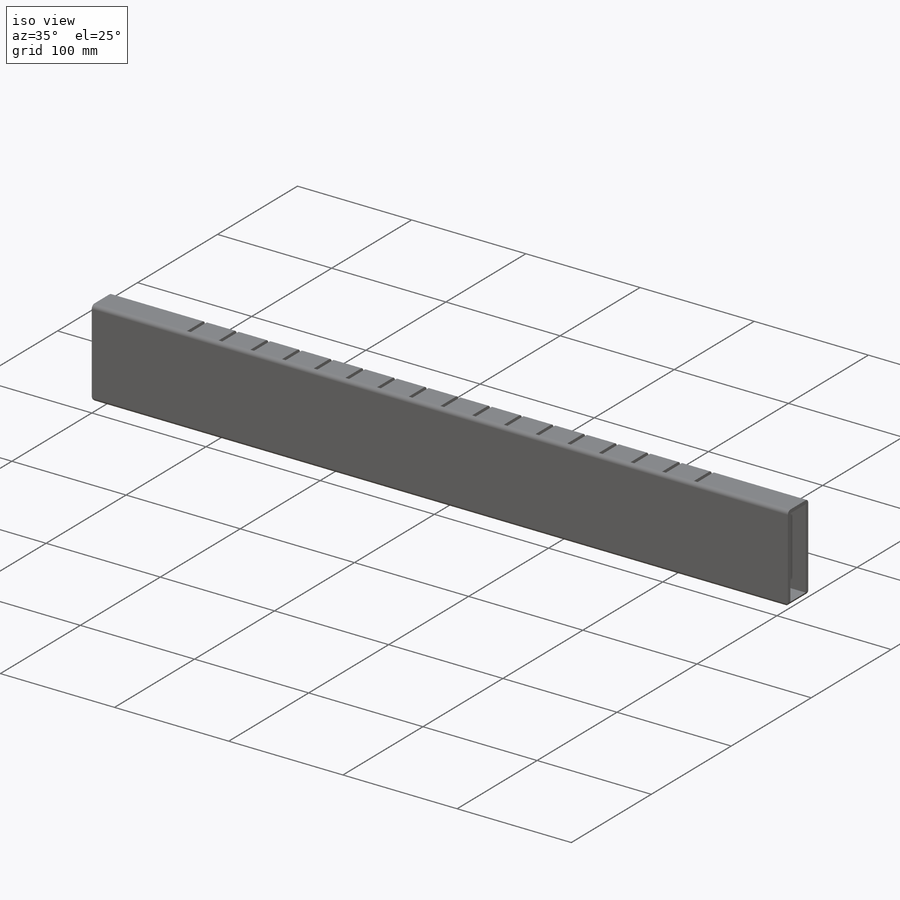
[diagram: iso view]
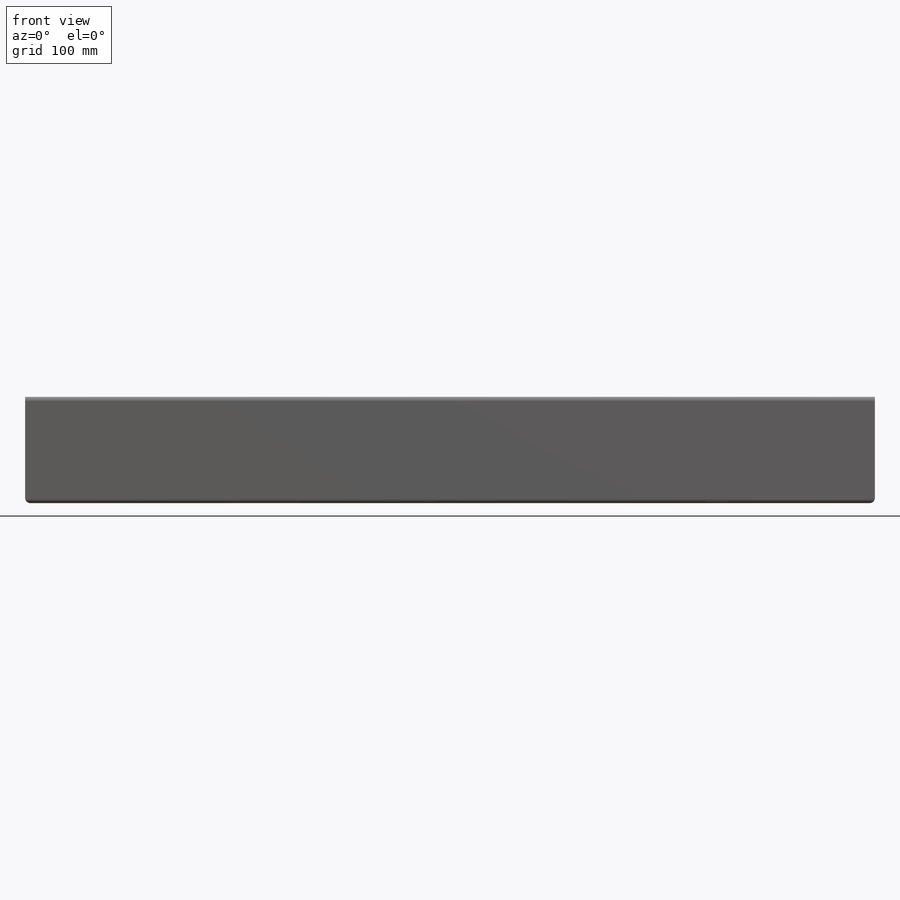
[diagram: front view]
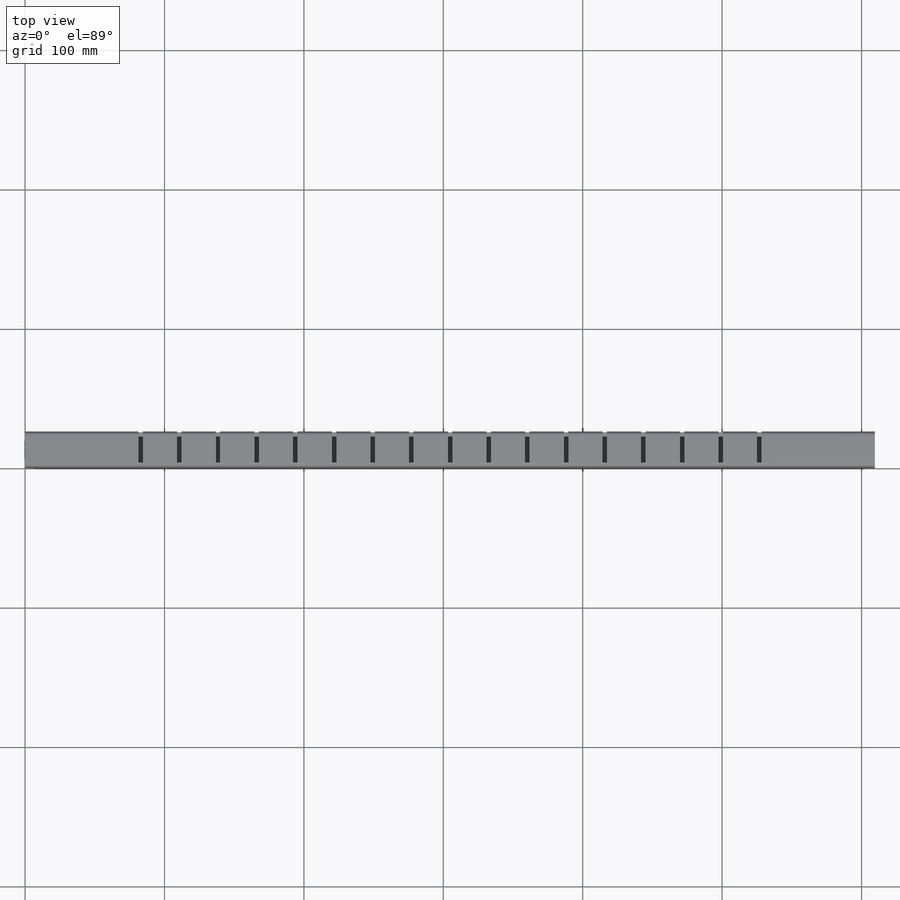
[diagram: top view]
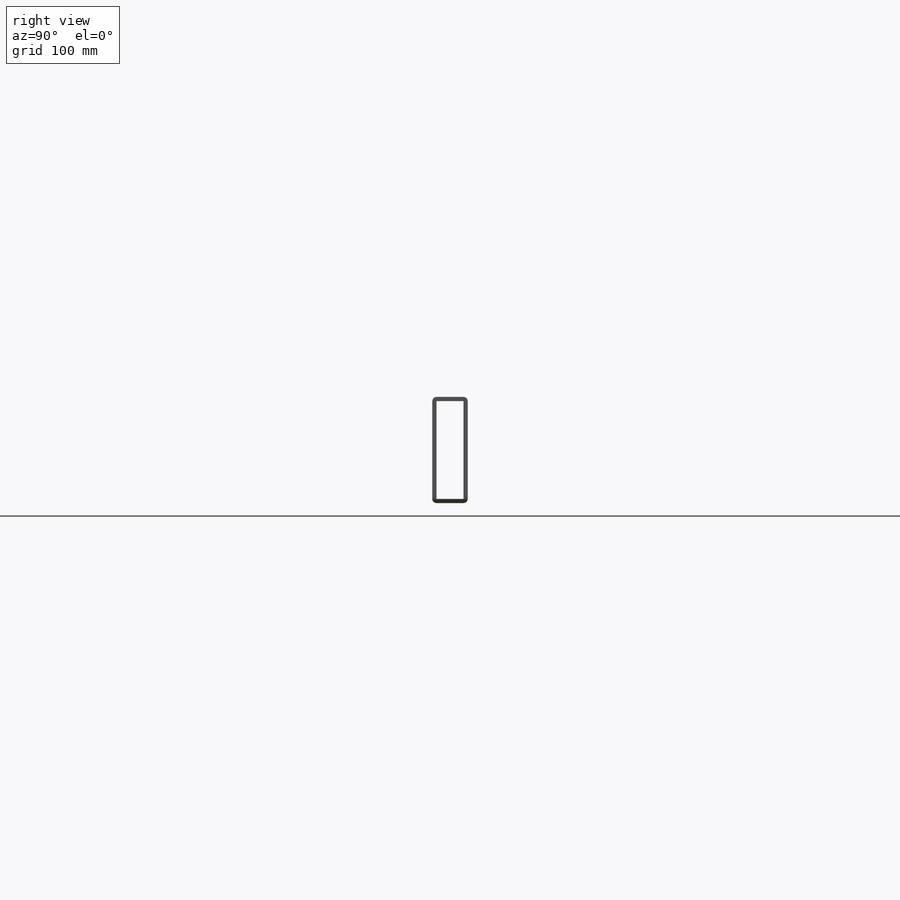
[diagram: right view]
SOLIDWORKS PART (.sldprt)
format: sldprt  version: not decoded by parser v0  size: 358,400 bytes
history: native  units: mm
features: sketch x3, cut_extrude x2, pattern_linear x2, material x1, extrude x1, fillet x1 (+13 scaffold rows collapsed)
feature tree (23):
  scaffold x13  (default folders/planes/origin — collapsed)
  material  "Material <not specified>"
  sketch  "Sketch1"  dims[D3=3.048mm D1=25.4mm D2=76.2mm D4=3.048mm]
  extrude  "Boss-Extrude1"  Depth=609.6mm
  sketch  "Sketch2"  dims[D1=3.175mm D2=81.28mm D3=38.1mm]
  cut_extrude  "Cut-Extrude1"  Depth=38.1mm
  pattern_linear  "LPattern1"  Count1=17 Count2=1 Spacing1=27.74188mm Spacing2=2.54mm
  fillet  "Fillet1"  Radius=3.81mm
  sketch  "Sketch4"  dims[D2=5.25mm D3=5.25mm D5=5.25mm D8=5.25mm D1=6.35mm D4=6.35mm D6=2.54mm D7=2.54mm]
  cut_extrude  "Cut-Extrude2"  Depth=6.35mm
  pattern_linear  "LPattern2"  Count1=2 Count2=1 Spacing1=507.1999mm Spacing2=2.54mm
decode coverage: 9 of 9 modeling features carry decoded parameters
note: suppression state not decoded; provenance and decode notes live in map.json
